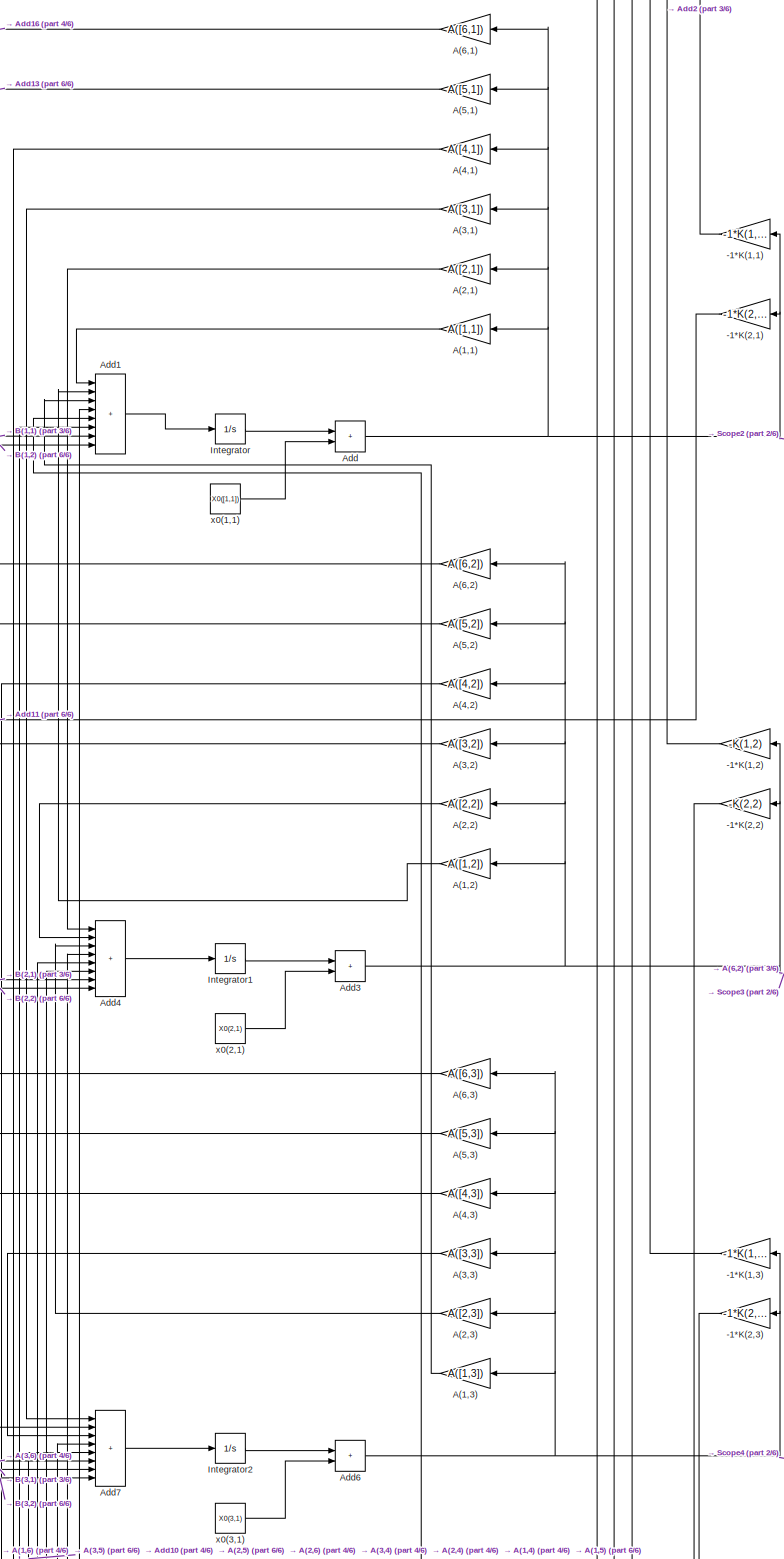
[diagram: root canvas - part 1/6, top center region]
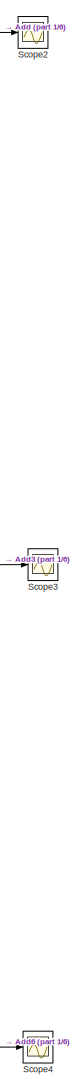
[diagram: root canvas - part 2/6, top right region]
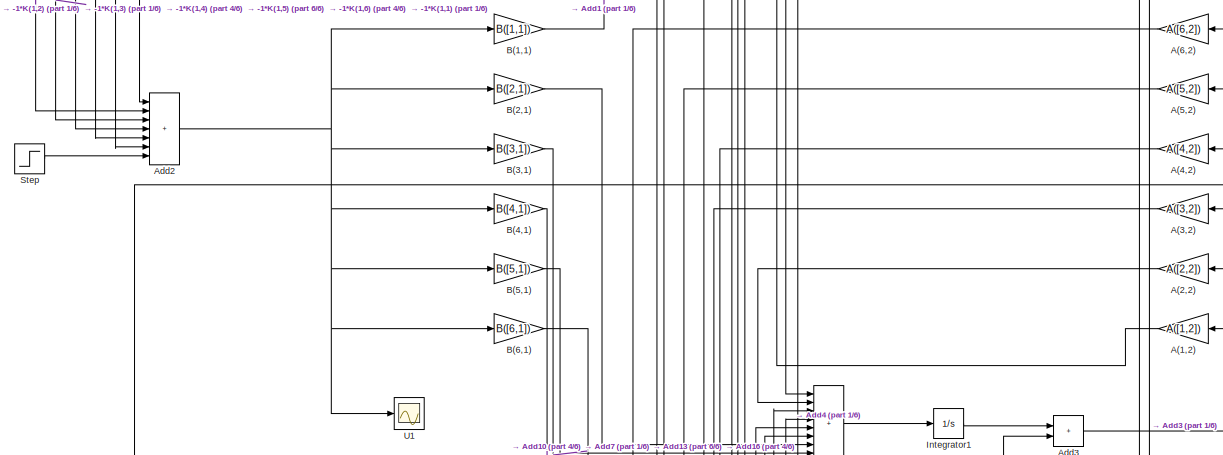
[diagram: root canvas - part 3/6, top center region]
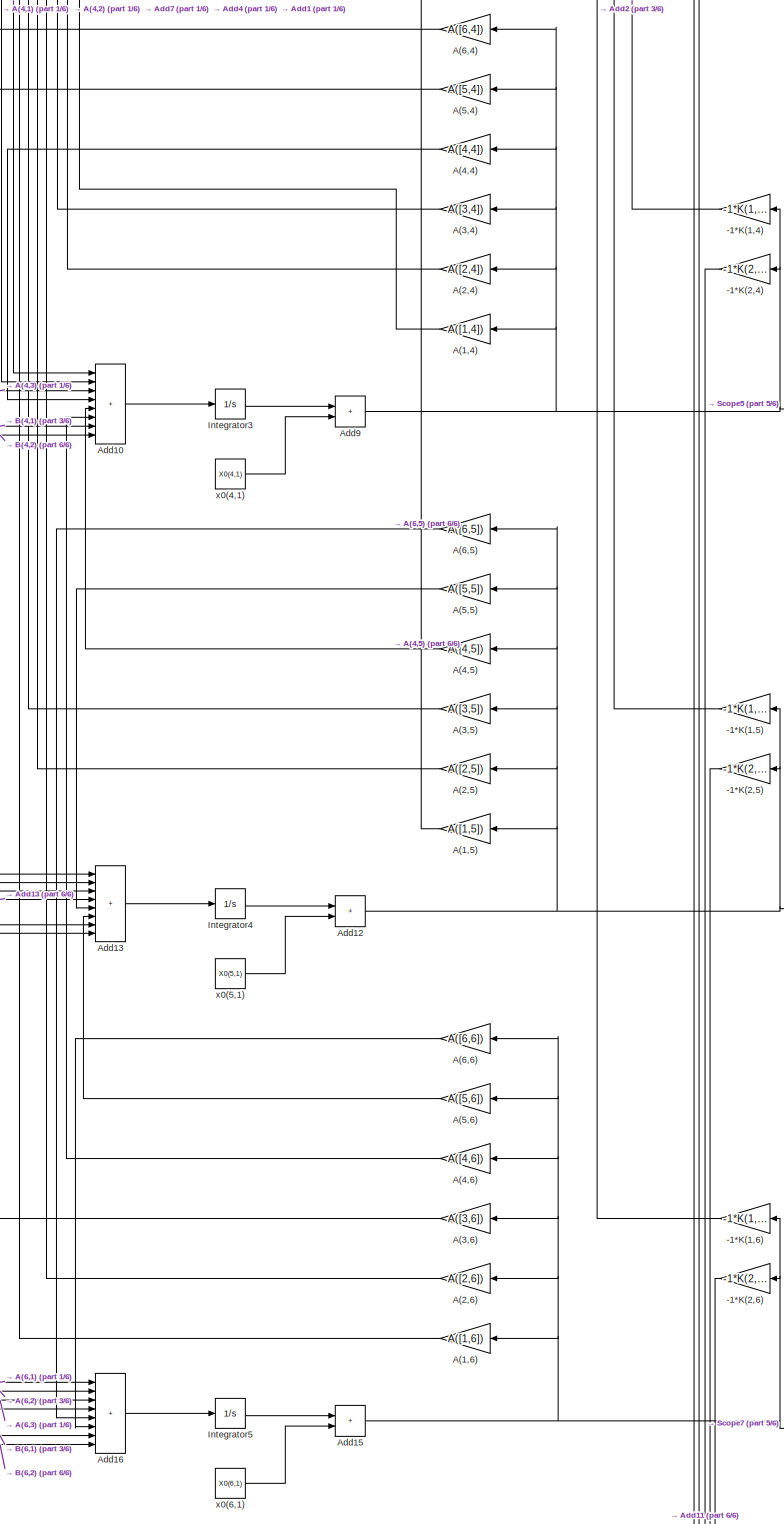
[diagram: root canvas - part 4/6, bottom center region]
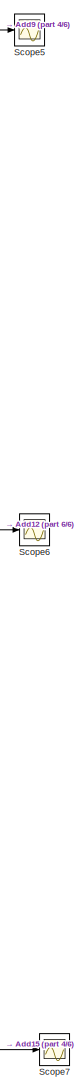
[diagram: root canvas - part 5/6, bottom right region]
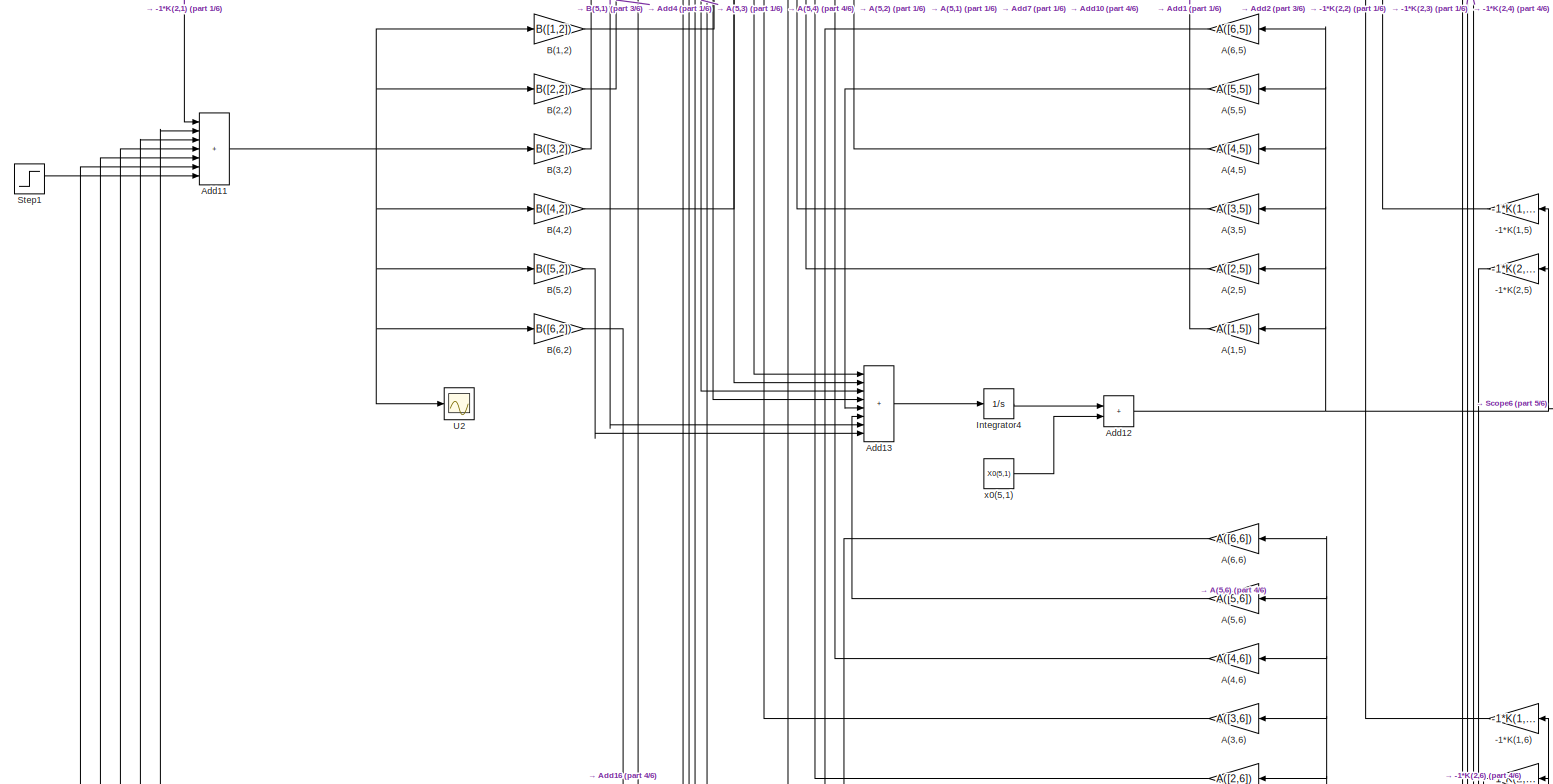
[diagram: root canvas - part 6/6, full width, bottom band]
MODEL slx_af3668a7d0a6
KIND model
CONFIG AbsTol = auto
CONFIG FixedStep = auto
CONFIG MaxStep = auto
CONFIG MinStep = auto
CONFIG RelTol = 1e-3
CONFIG SampleTimeConstraint = Unconstrained
CONFIG Solver = VariableStepAuto
CONFIG SolverMode = SingleTasking
CONFIG SolverName = VariableStepAuto
CONFIG StartTime = 0.0
CONFIG StopTime = 3.5
BLOCK [Gain] -1*K(1,1)
  Gain = -1*K(1,1)
BLOCK [Gain] -1*K(1,2)
  Gain = -K(1,2)
BLOCK [Gain] -1*K(1,3)
  Gain = -1*K(1,3)
BLOCK [Gain] -1*K(1,4)
  Gain = -1*K(1,4)
BLOCK [Gain] -1*K(1,5)
  Gain = -1*K(1,5)
BLOCK [Gain] -1*K(1,6)
  Gain = -1*K(1,6)
BLOCK [Gain] -1*K(2,1)
  Gain = -1*K(2,1)
BLOCK [Gain] -1*K(2,2)
  Gain = -K(2,2)
BLOCK [Gain] -1*K(2,3)
  Gain = -1*K(2,3)
BLOCK [Gain] -1*K(2,4)
  Gain = -1*K(2,4)
BLOCK [Gain] -1*K(2,5)
  Gain = -1*K(2,5)
BLOCK [Gain] -1*K(2,6)
  Gain = -1*K(2,6)
BLOCK [Gain] A(1,1)
  Gain = A([1,1])
BLOCK [Gain] A(1,2)
  Gain = A([1,2])
BLOCK [Gain] A(1,3)
  Gain = A([1,3])
BLOCK [Gain] A(1,4)
  Gain = A([1,4])
BLOCK [Gain] A(1,5)
  Gain = A([1,5])
BLOCK [Gain] A(1,6)
  Gain = A([1,6])
BLOCK [Gain] A(2,1)
  Gain = A([2,1])
BLOCK [Gain] A(2,2)
  Gain = A([2,2])
BLOCK [Gain] A(2,3)
  Gain = A([2,3])
BLOCK [Gain] A(2,4)
  Gain = A([2,4])
BLOCK [Gain] A(2,5)
  Gain = A([2,5])
BLOCK [Gain] A(2,6)
  Gain = A([2,6])
BLOCK [Gain] A(3,1)
  Gain = A([3,1])
BLOCK [Gain] A(3,2)
  Gain = A([3,2])
BLOCK [Gain] A(3,3)
  Gain = A([3,3])
BLOCK [Gain] A(3,4)
  Gain = A([3,4])
BLOCK [Gain] A(3,5)
  Gain = A([3,5])
BLOCK [Gain] A(3,6)
  Gain = A([3,6])
BLOCK [Gain] A(4,1)
  Gain = A([4,1])
BLOCK [Gain] A(4,2)
  Gain = A([4,2])
BLOCK [Gain] A(4,3)
  Gain = A([4,3])
BLOCK [Gain] A(4,4)
  Gain = A([4,4])
BLOCK [Gain] A(4,5)
  Gain = A([4,5])
BLOCK [Gain] A(4,6)
  Gain = A([4,6])
BLOCK [Gain] A(5,1)
  Gain = A([5,1])
BLOCK [Gain] A(5,2)
  Gain = A([5,2])
BLOCK [Gain] A(5,3)
  Gain = A([5,3])
BLOCK [Gain] A(5,4)
  Gain = A([5,4])
BLOCK [Gain] A(5,5)
  Gain = A([5,5])
BLOCK [Gain] A(5,6)
  Gain = A([5,6])
BLOCK [Gain] A(6,1)
  Gain = A([6,1])
BLOCK [Gain] A(6,2)
  Gain = A([6,2])
BLOCK [Gain] A(6,3)
  Gain = A([6,3])
BLOCK [Gain] A(6,4)
  Gain = A([6,4])
BLOCK [Gain] A(6,5)
  Gain = A([6,5])
BLOCK [Gain] A(6,6)
  Gain = A([6,6])
BLOCK [Sum] Add
  IconShape = rectangular
  Ports = [2, 1]
BLOCK [Sum] Add1
  IconShape = rectangular
  Inputs = ++++++++
  Ports = [8, 1]
BLOCK [Sum] Add10
  IconShape = rectangular
  Inputs = ++++++++
  Ports = [8, 1]
BLOCK [Sum] Add11
  IconShape = rectangular
  Inputs = +++++++
  Ports = [7, 1]
BLOCK [Sum] Add12
  IconShape = rectangular
  Ports = [2, 1]
BLOCK [Sum] Add13
  IconShape = rectangular
  Inputs = ++++++++
  Ports = [8, 1]
BLOCK [Sum] Add15
  IconShape = rectangular
  Ports = [2, 1]
BLOCK [Sum] Add16
  IconShape = rectangular
  Inputs = ++++++++
  Ports = [8, 1]
BLOCK [Sum] Add2
  IconShape = rectangular
  Inputs = +++++++
  Ports = [7, 1]
BLOCK [Sum] Add3
  IconShape = rectangular
  Ports = [2, 1]
BLOCK [Sum] Add4
  IconShape = rectangular
  Inputs = ++++++++
  Ports = [8, 1]
BLOCK [Sum] Add6
  IconShape = rectangular
  Ports = [2, 1]
BLOCK [Sum] Add7
  IconShape = rectangular
  Inputs = ++++++++
  Ports = [8, 1]
BLOCK [Sum] Add9
  IconShape = rectangular
  Ports = [2, 1]
BLOCK [Gain] B(1,1)
  Gain = B([1,1])
BLOCK [Gain] B(1,2)
  Gain = B([1,2])
BLOCK [Gain] B(2,1)
  Gain = B([2,1])
BLOCK [Gain] B(2,2)
  Gain = B([2,2])
BLOCK [Gain] B(3,1)
  Gain = B([3,1])
BLOCK [Gain] B(3,2)
  Gain = B([3,2])
BLOCK [Gain] B(4,1)
  Gain = B([4,1])
BLOCK [Gain] B(4,2)
  Gain = B([4,2])
BLOCK [Gain] B(5,1)
  Gain = B([5,1])
BLOCK [Gain] B(5,2)
  Gain = B([5,2])
BLOCK [Gain] B(6,1)
  Gain = B([6,1])
BLOCK [Gain] B(6,2)
  Gain = B([6,2])
BLOCK [Integrator] Integrator
  Ports = [1, 1]
BLOCK [Integrator] Integrator1
  Ports = [1, 1]
BLOCK [Integrator] Integrator2
  Ports = [1, 1]
BLOCK [Integrator] Integrator3
  Ports = [1, 1]
BLOCK [Integrator] Integrator4
  Ports = [1, 1]
BLOCK [Integrator] Integrator5
  Ports = [1, 1]
BLOCK [Scope] Scope2
  Floating = off
  NumInputPorts = 1
  Ports = [1]
  ScopeSpecificationString = Simulink.scopes.TimeScopeBlockCfg('CurrentConfiguration', extmgr.ConfigurationSet(extmgr.Configuration('Core','General UI',true),extmgr.Configuration('Core','Source UI',true),extmgr.Configuration('Sources','WiredSimulink',true,'DataLoggingVariableName','ScopeData2'),extmgr.Configuration('Visuals','Time Domain',true,'SerializedDisplays',{struct('MinYLimReal','-0.9266','MaxYLimReal','0.32518','YLabe...<+1439ch>
BLOCK [Scope] Scope3
  Floating = off
  NumInputPorts = 1
  Ports = [1]
  ScopeSpecificationString = Simulink.scopes.TimeScopeBlockCfg('CurrentConfiguration', extmgr.ConfigurationSet(extmgr.Configuration('Core','General UI',true),extmgr.Configuration('Core','Source UI',true),extmgr.Configuration('Sources','WiredSimulink',true,'DataLoggingVariableName','ScopeData3'),extmgr.Configuration('Visuals','Time Domain',true,'SerializedDisplays',{struct('MinYLimReal','-1.2266','MaxYLimReal','0.02518','YLabe...<+1451ch>
BLOCK [Scope] Scope4
  Floating = off
  NumInputPorts = 1
  Ports = [1]
  ScopeSpecificationString = Simulink.scopes.TimeScopeBlockCfg('CurrentConfiguration', extmgr.ConfigurationSet(extmgr.Configuration('Core','General UI',true),extmgr.Configuration('Core','Source UI',true),extmgr.Configuration('Sources','WiredSimulink',true,'DataLoggingVariableName','ScopeData4'),extmgr.Configuration('Visuals','Time Domain',true,'SerializedDisplays',{struct('MinYLimReal','-0.9766','MaxYLimReal','0.27518','YLabe...<+1370ch>
BLOCK [Scope] Scope5
  Floating = off
  NumInputPorts = 1
  Ports = [1]
  ScopeSpecificationString = Simulink.scopes.TimeScopeBlockCfg('CurrentConfiguration', extmgr.ConfigurationSet(extmgr.Configuration('Core','General UI',true),extmgr.Configuration('Core','Source UI',true),extmgr.Configuration('Sources','WiredSimulink',true,'DataLoggingVariableName','ScopeData5'),extmgr.Configuration('Visuals','Time Domain',true,'SerializedDisplays',{struct('MinYLimReal','-135.8','MaxYLimReal','14.2','YLabelRea...<+1362ch>
BLOCK [Scope] Scope6
  Floating = off
  NumInputPorts = 1
  Ports = [1]
  ScopeSpecificationString = Simulink.scopes.TimeScopeBlockCfg('CurrentConfiguration', extmgr.ConfigurationSet(extmgr.Configuration('Core','General UI',true),extmgr.Configuration('Core','Source UI',true),extmgr.Configuration('Sources','WiredSimulink',true,'DataLoggingVariableName','ScopeData6'),extmgr.Configuration('Visuals','Time Domain',true,'SerializedDisplays',{struct('MinYLimReal','-117.75745','MaxYLimReal','13.97305','Y...<+1388ch>
BLOCK [Scope] Scope7
  Floating = off
  NumInputPorts = 1
  Ports = [1]
  ScopeSpecificationString = Simulink.scopes.TimeScopeBlockCfg('CurrentConfiguration', extmgr.ConfigurationSet(extmgr.Configuration('Core','General UI',true),extmgr.Configuration('Core','Source UI',true),extmgr.Configuration('Sources','WiredSimulink',true,'DataLoggingVariableName','ScopeData7'),extmgr.Configuration('Visuals','Time Domain',true,'SerializedDisplays',{struct('MinYLimReal','-29.52618','MaxYLimReal','255.72139','Y...<+1386ch>
BLOCK [Step] Step
  SampleTime = 0
BLOCK [Step] Step1
  SampleTime = 0
BLOCK [Scope] U1
  Floating = off
  NumInputPorts = 1
  Ports = [1]
  ScopeSpecificationString = Simulink.scopes.TimeScopeBlockCfg('CurrentConfiguration', extmgr.ConfigurationSet(extmgr.Configuration('Core','General UI',true),extmgr.Configuration('Core','Source UI',true),extmgr.Configuration('Sources','WiredSimulink',true),extmgr.Configuration('Visuals','Time Domain',true,'SerializedDisplays',{struct('MinYLimReal','-1.00000','MaxYLimReal','1.00000','YLabelReal','','MinYLimMag','0.00000','MaxY...<+1335ch>
BLOCK [Scope] U2
  Floating = off
  NumInputPorts = 1
  Ports = [1]
  ScopeSpecificationString = Simulink.scopes.TimeScopeBlockCfg('CurrentConfiguration', extmgr.ConfigurationSet(extmgr.Configuration('Core','General UI',true),extmgr.Configuration('Core','Source UI',true),extmgr.Configuration('Sources','WiredSimulink',true,'DataLoggingVariableName','ScopeData1'),extmgr.Configuration('Visuals','Time Domain',true,'SerializedDisplays',{struct('MinYLimReal','-1.00000','MaxYLimReal','1.00000','YLab...<+1376ch>
BLOCK [Constant] x0(1,1)
  Value = X0([1,1])
BLOCK [Constant] x0(2,1)
  Value = X0(2,1)
BLOCK [Constant] x0(3,1)
  Value = X0(3,1)
BLOCK [Constant] x0(4,1)
  Value = X0(4,1)
BLOCK [Constant] x0(5,1)
  Value = X0(5,1)
BLOCK [Constant] x0(6,1)
  Value = X0(6,1)
LINE -1*K(1,1):1 -> Add2:1
LINE -1*K(1,2):1 -> Add2:2
LINE -1*K(1,3):1 -> Add2:3
LINE -1*K(1,4):1 -> Add2:4
LINE -1*K(1,5):1 -> Add2:5
LINE -1*K(1,6):1 -> Add2:6
LINE -1*K(2,1):1 -> Add11:1
LINE -1*K(2,2):1 -> Add11:2
LINE -1*K(2,3):1 -> Add11:3
LINE -1*K(2,4):1 -> Add11:4
LINE -1*K(2,5):1 -> Add11:5
LINE -1*K(2,6):1 -> Add11:6
LINE A(1,1):1 -> Add1:1
LINE A(1,2):1 -> Add1:2
LINE A(1,3):1 -> Add1:3
LINE A(1,4):1 -> Add1:4
LINE A(1,5):1 -> Add1:5
LINE A(1,6):1 -> Add1:6
LINE A(2,1):1 -> Add4:1
LINE A(2,2):1 -> Add4:2
LINE A(2,3):1 -> Add4:3
LINE A(2,4):1 -> Add4:4
LINE A(2,5):1 -> Add4:5
LINE A(2,6):1 -> Add4:6
LINE A(3,1):1 -> Add7:1
LINE A(3,2):1 -> Add7:2
LINE A(3,3):1 -> Add7:3
LINE A(3,4):1 -> Add7:4
LINE A(3,5):1 -> Add7:5
LINE A(3,6):1 -> Add7:6
LINE A(4,1):1 -> Add10:1
LINE A(4,2):1 -> Add10:2
LINE A(4,3):1 -> Add10:3
LINE A(4,4):1 -> Add10:4
LINE A(4,5):1 -> Add10:5
LINE A(4,6):1 -> Add10:6
LINE A(5,1):1 -> Add13:1
LINE A(5,2):1 -> Add13:2
LINE A(5,3):1 -> Add13:3
LINE A(5,4):1 -> Add13:4
LINE A(5,5):1 -> Add13:5
LINE A(5,6):1 -> Add13:6
LINE A(6,1):1 -> Add16:1
LINE A(6,2):1 -> Add16:2
LINE A(6,3):1 -> Add16:3
LINE A(6,4):1 -> Add16:4
LINE A(6,5):1 -> Add16:5
LINE A(6,6):1 -> Add16:6
LINE Add10:1 -> Integrator3:1
NET Add11:1 -> B(1,2):1, B(2,2):1, B(3,2):1, B(4,2):1, B(5,2):1, B(6,2):1, U2:1
NET Add12:1 -> -1*K(1,5):1, -1*K(2,5):1, A(1,5):1, A(2,5):1, A(3,5):1, A(4,5):1, A(5,5):1, A(6,5):1, Scope6:1
LINE Add13:1 -> Integrator4:1
NET Add15:1 -> -1*K(1,6):1, -1*K(2,6):1, A(1,6):1, A(2,6):1, A(3,6):1, A(4,6):1, A(5,6):1, A(6,6):1, Scope7:1
LINE Add16:1 -> Integrator5:1
LINE Add1:1 -> Integrator:1
NET Add2:1 -> B(1,1):1, B(2,1):1, B(3,1):1, B(4,1):1, B(5,1):1, B(6,1):1, U1:1
NET Add3:1 -> -1*K(1,2):1, -1*K(2,2):1, A(1,2):1, A(2,2):1, A(3,2):1, A(4,2):1, A(5,2):1, A(6,2):1, Scope3:1
LINE Add4:1 -> Integrator1:1
NET Add6:1 -> -1*K(1,3):1, -1*K(2,3):1, A(1,3):1, A(2,3):1, A(3,3):1, A(4,3):1, A(5,3):1, A(6,3):1, Scope4:1
LINE Add7:1 -> Integrator2:1
NET Add9:1 -> -1*K(1,4):1, -1*K(2,4):1, A(1,4):1, A(2,4):1, A(3,4):1, A(4,4):1, A(5,4):1, A(6,4):1, Scope5:1
NET Add:1 -> -1*K(1,1):1, -1*K(2,1):1, A(1,1):1, A(2,1):1, A(3,1):1, A(4,1):1, A(5,1):1, A(6,1):1, Scope2:1
LINE B(1,1):1 -> Add1:7
LINE B(1,2):1 -> Add1:8
LINE B(2,1):1 -> Add4:7
LINE B(2,2):1 -> Add4:8
LINE B(3,1):1 -> Add7:7
LINE B(3,2):1 -> Add7:8
LINE B(4,1):1 -> Add10:7
LINE B(4,2):1 -> Add10:8
LINE B(5,1):1 -> Add13:7
LINE B(5,2):1 -> Add13:8
LINE B(6,1):1 -> Add16:7
LINE B(6,2):1 -> Add16:8
LINE Integrator1:1 -> Add3:1
LINE Integrator2:1 -> Add6:1
LINE Integrator3:1 -> Add9:1
LINE Integrator4:1 -> Add12:1
LINE Integrator5:1 -> Add15:1
LINE Integrator:1 -> Add:1
LINE Step1:1 -> Add11:7
LINE Step:1 -> Add2:7
LINE x0(1,1):1 -> Add:2
LINE x0(2,1):1 -> Add3:2
LINE x0(3,1):1 -> Add6:2
LINE x0(4,1):1 -> Add9:2
LINE x0(5,1):1 -> Add12:2
LINE x0(6,1):1 -> Add15:2
note: NET lines group one-source signal fan-out (src -> all destinations, sorted); 1:1 wires keep LINE
